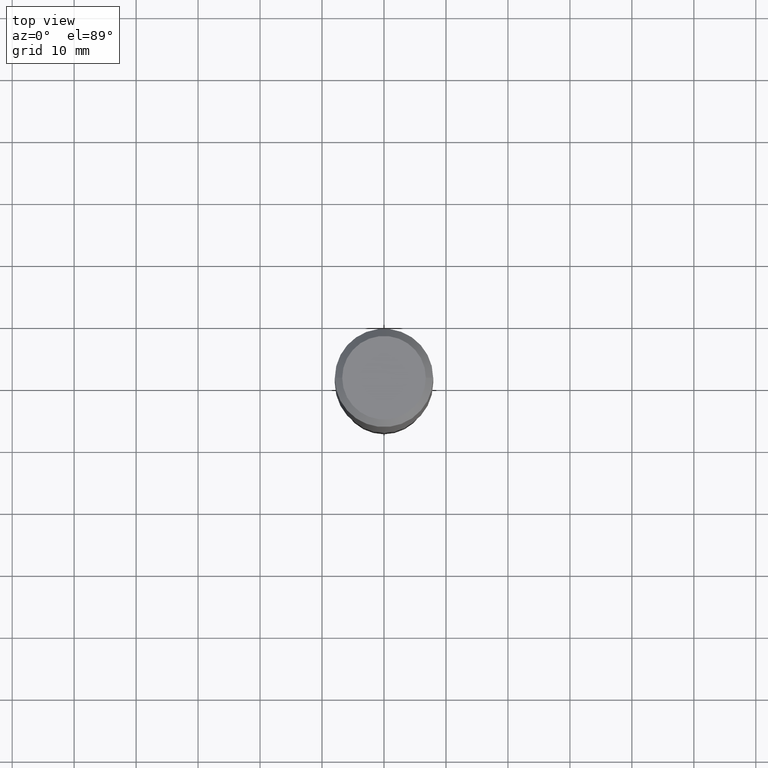
[diagram: clean part render]
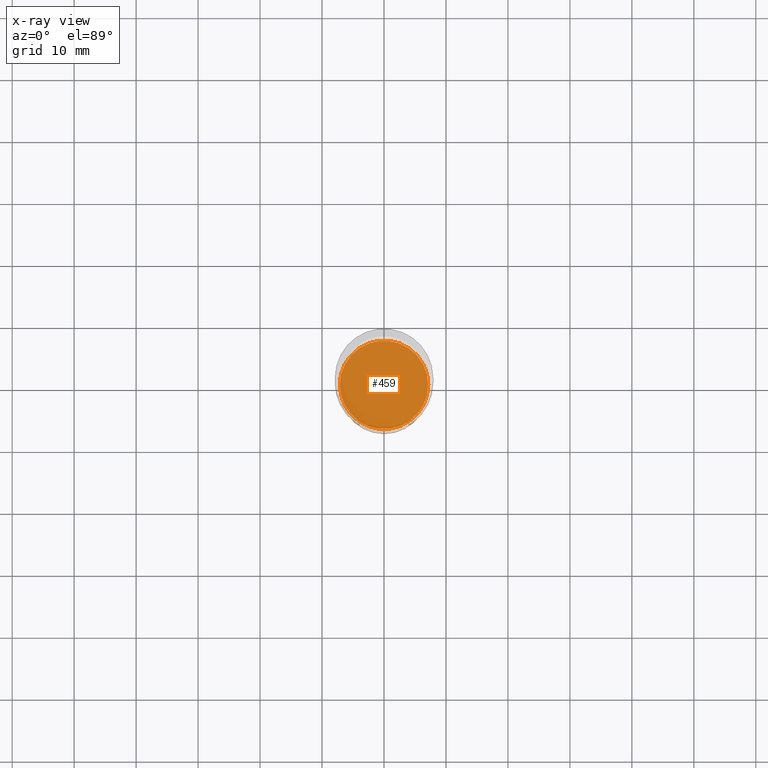
[diagram: x-ray — body ghosted, one internal face saturated and labeled with its STEP entity id]
A machine part, top view, then the same camera in x-ray: the body is ghosted and one INTERNAL B-rep face — a face not visible from any outside direction — is saturated and labeled: STEP entity #459.
In plain terms, the highlighted planar face has unit normal (-0, 0, 1).
Its self-contained STEP definition (entity closure, byte-faithful):
#34 = PLANE ( 'NONE',  #313 ) ;
#45 = DIRECTION ( 'NONE',  ( 1.000000000000000000, -6.982962677686264344E-15, 0.000000000000000000 ) ) ;
#93 = DIRECTION ( 'NONE',  ( -2.445468806185136597E-29, 3.491481338843145583E-15, 1.000000000000000000 ) ) ;
#119 = DIRECTION ( 'NONE',  ( 1.000000000000000000, -6.982962677686264344E-15, 0.000000000000000000 ) ) ;
#134 = EDGE_CURVE ( 'NONE', #224, #310, #277, .T. ) ;
#142 = CARTESIAN_POINT ( 'NONE',  ( 6.419355616235982445E-29, -9.165138514463255034E-15, -2.624999999999999556 ) ) ;
#146 = ORIENTED_EDGE ( 'NONE', *, *, #147, .F. ) ;
#147 = EDGE_CURVE ( 'NONE', #310, #224, #290, .T. ) ;
#165 = AXIS2_PLACEMENT_3D ( 'NONE', #199, #93, #45 ) ;
#183 = CARTESIAN_POINT ( 'NONE',  ( 0.2807499999999999996, -1.112560528622367375E-14, -2.624999999999999556 ) ) ;
#199 = CARTESIAN_POINT ( 'NONE',  ( 6.419355616235982445E-29, -9.165138514463255034E-15, -2.624999999999999556 ) ) ;
#224 = VERTEX_POINT ( 'NONE', #334 ) ;
#235 = DIRECTION ( 'NONE',  ( -2.445468806185136597E-29, 3.491481338843145583E-15, 1.000000000000000000 ) ) ;
#277 = CIRCLE ( 'NONE', #481, 0.2807499999999999996 ) ;
#290 = CIRCLE ( 'NONE', #165, 0.2807499999999999996 ) ;
#299 = DIRECTION ( 'NONE',  ( 1.000000000000000000, -6.982962677686265922E-15, 4.876176775795935793E-29 ) ) ;
#310 = VERTEX_POINT ( 'NONE', #183 ) ;
#313 = AXIS2_PLACEMENT_3D ( 'NONE', #142, #441, #299 ) ;
#334 = CARTESIAN_POINT ( 'NONE',  ( -0.2807499999999999996, -7.167640556642661381E-15, -2.624999999999999556 ) ) ;
#340 = EDGE_LOOP ( 'NONE', ( #146, #483 ) ) ;
#367 = FACE_OUTER_BOUND ( 'NONE', #340, .T. ) ;
#441 = DIRECTION ( 'NONE',  ( -2.438088387897960049E-29, 3.491481338843145188E-15, 1.000000000000000000 ) ) ;
#459 = ADVANCED_FACE ( 'NONE', ( #367 ), #34, .F. ) ;
#467 = CARTESIAN_POINT ( 'NONE',  ( 6.419355616235982445E-29, -9.165138514463255034E-15, -2.624999999999999556 ) ) ;
#481 = AXIS2_PLACEMENT_3D ( 'NONE', #467, #235, #119 ) ;
#483 = ORIENTED_EDGE ( 'NONE', *, *, #134, .F. ) ;